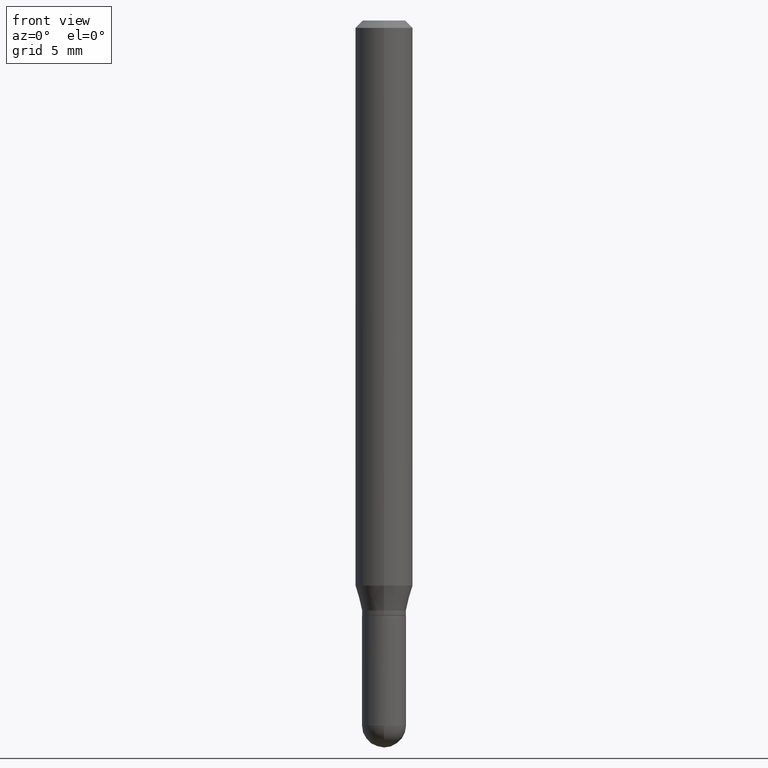
[diagram: clean part render]
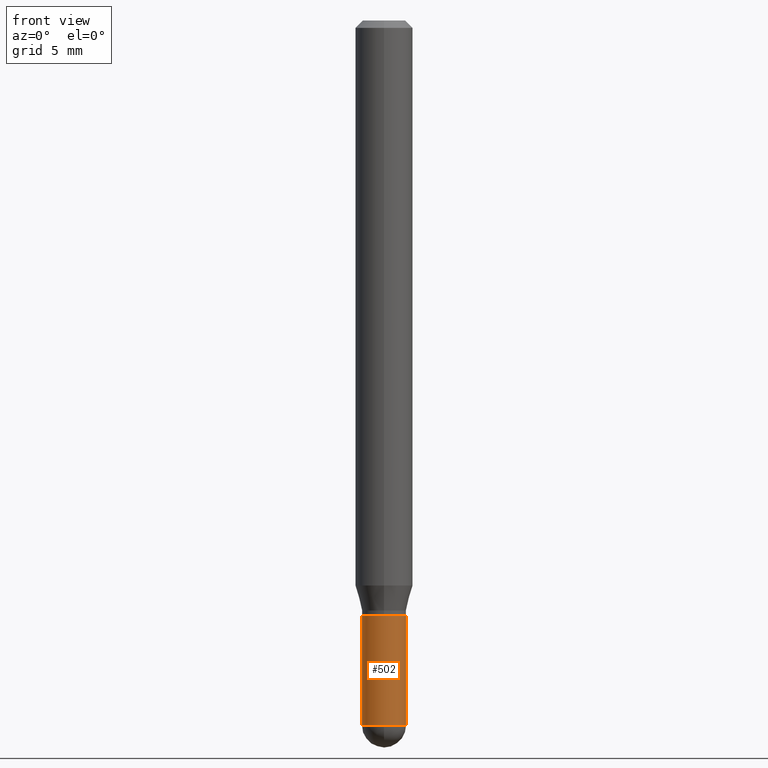
[diagram: same view with one face highlighted and labeled with its STEP entity id]
A machine part, front view. The second image highlights one B-rep face of the part: STEP entity #502.
In plain terms, the highlighted cylindrical surface (edge-blend (fillet) strip) has radius 1.1506 mm, axis along (-0, 0, 1).
Its self-contained STEP definition (entity closure, byte-faithful):
#19 = EDGE_CURVE ( 'NONE', #374, #232, #317, .T. ) ;
#47 = CIRCLE ( 'NONE', #230, 0.04529999999999999999 ) ;
#49 = CARTESIAN_POINT ( 'NONE',  ( 3.547886144013395202E-29, -5.065441126393634337E-15, -1.450799999999999645 ) ) ;
#52 = DIRECTION ( 'NONE',  ( -2.445468806185136597E-29, 3.491481338843145583E-15, 1.000000000000000000 ) ) ;
#86 = EDGE_LOOP ( 'NONE', ( #405, #503, #127, #124, #110 ) ) ;
#110 = ORIENTED_EDGE ( 'NONE', *, *, #261, .F. ) ;
#121 = CARTESIAN_POINT ( 'NONE',  ( 0.04530000000000000693, -3.163282092991879344E-16, 2.208908079435559539E-30 ) ) ;
#124 = ORIENTED_EDGE ( 'NONE', *, *, #384, .T. ) ;
#127 = ORIENTED_EDGE ( 'NONE', *, *, #19, .T. ) ;
#129 = VECTOR ( 'NONE', #463, 39.37007874015748143 ) ;
#146 = DIRECTION ( 'NONE',  ( 1.000000000000000000, -6.982962677686269866E-15, 0.000000000000000000 ) ) ;
#147 = VECTOR ( 'NONE', #481, 39.37007874015748143 ) ;
#150 = DIRECTION ( 'NONE',  ( -2.445468806185136597E-29, 3.491481338843145583E-15, 1.000000000000000000 ) ) ;
#163 = VERTEX_POINT ( 'NONE', #294 ) ;
#167 = CYLINDRICAL_SURFACE ( 'NONE', #457, 0.04530000000000000693 ) ;
#172 = AXIS2_PLACEMENT_3D ( 'NONE', #49, #52, #238 ) ;
#186 = CARTESIAN_POINT ( 'NONE',  ( 3.547886144013395202E-29, -5.065441126393634337E-15, -1.450799999999999645 ) ) ;
#187 = AXIS2_PLACEMENT_3D ( 'NONE', #186, #150, #146 ) ;
#205 = LINE ( 'NONE', #121, #147 ) ;
#230 = AXIS2_PLACEMENT_3D ( 'NONE', #306, #426, #501 ) ;
#232 = VERTEX_POINT ( 'NONE', #366 ) ;
#238 = DIRECTION ( 'NONE',  ( 1.000000000000000000, -6.982962677686269866E-15, 0.000000000000000000 ) ) ;
#248 = CIRCLE ( 'NONE', #187, 0.04530000000000000693 ) ;
#250 = FACE_OUTER_BOUND ( 'NONE', #86, .T. ) ;
#251 = EDGE_CURVE ( 'NONE', #163, #374, #248, .T. ) ;
#261 = EDGE_CURVE ( 'NONE', #320, #412, #47, .T. ) ;
#263 = EDGE_CURVE ( 'NONE', #163, #320, #437, .T. ) ;
#279 = CARTESIAN_POINT ( 'NONE',  ( 0.04529999999999999999, -4.591297960578735035E-15, -1.224399999999999933 ) ) ;
#294 = CARTESIAN_POINT ( 'NONE',  ( -0.04530000000000000693, -4.348329579537264718E-15, -1.450799999999999645 ) ) ;
#306 = CARTESIAN_POINT ( 'NONE',  ( 2.994232006293080857E-29, -4.274969751279546755E-15, -1.224399999999999933 ) ) ;
#317 = CIRCLE ( 'NONE', #172, 0.04530000000000000693 ) ;
#320 = VERTEX_POINT ( 'NONE', #398 ) ;
#339 = DIRECTION ( 'NONE',  ( -2.445468806185136597E-29, 3.491481338843145583E-15, 1.000000000000000000 ) ) ;
#366 = CARTESIAN_POINT ( 'NONE',  ( 0.04530000000000000693, -4.986533648135779220E-15, -1.450799999999999645 ) ) ;
#374 = VERTEX_POINT ( 'NONE', #411 ) ;
#384 = EDGE_CURVE ( 'NONE', #232, #412, #205, .T. ) ;
#398 = CARTESIAN_POINT ( 'NONE',  ( -0.04529999999999999999, -4.348329579537264718E-15, -1.224399999999999933 ) ) ;
#405 = ORIENTED_EDGE ( 'NONE', *, *, #263, .F. ) ;
#411 = CARTESIAN_POINT ( 'NONE',  ( -3.163282092991523864E-16, -0.04530000000000506538, -1.450799999999999423 ) ) ;
#412 = VERTEX_POINT ( 'NONE', #279 ) ;
#415 = CARTESIAN_POINT ( 'NONE',  ( 0.000000000000000000, 0.000000000000000000, 0.000000000000000000 ) ) ;
#426 = DIRECTION ( 'NONE',  ( -2.445468806185136597E-29, 3.491481338843145583E-15, 1.000000000000000000 ) ) ;
#437 = LINE ( 'NONE', #504, #129 ) ;
#457 = AXIS2_PLACEMENT_3D ( 'NONE', #415, #339, #487 ) ;
#463 = DIRECTION ( 'NONE',  ( -2.445468806185136877E-29, 3.491481338843145188E-15, 1.000000000000000000 ) ) ;
#481 = DIRECTION ( 'NONE',  ( -2.445468806185136877E-29, 3.491481338843145188E-15, 1.000000000000000000 ) ) ;
#487 = DIRECTION ( 'NONE',  ( 1.000000000000000000, -6.982962677686266711E-15, 4.876176775795936353E-29 ) ) ;
#501 = DIRECTION ( 'NONE',  ( 1.000000000000000000, -6.982962677686271444E-15, 0.000000000000000000 ) ) ;
#502 = ADVANCED_FACE ( 'NONE', ( #250 ), #167, .T. ) ;
#503 = ORIENTED_EDGE ( 'NONE', *, *, #251, .T. ) ;
#504 = CARTESIAN_POINT ( 'NONE',  ( -0.04530000000000000693, 3.218758592993254334E-16, -2.228277595885472564E-30 ) ) ;